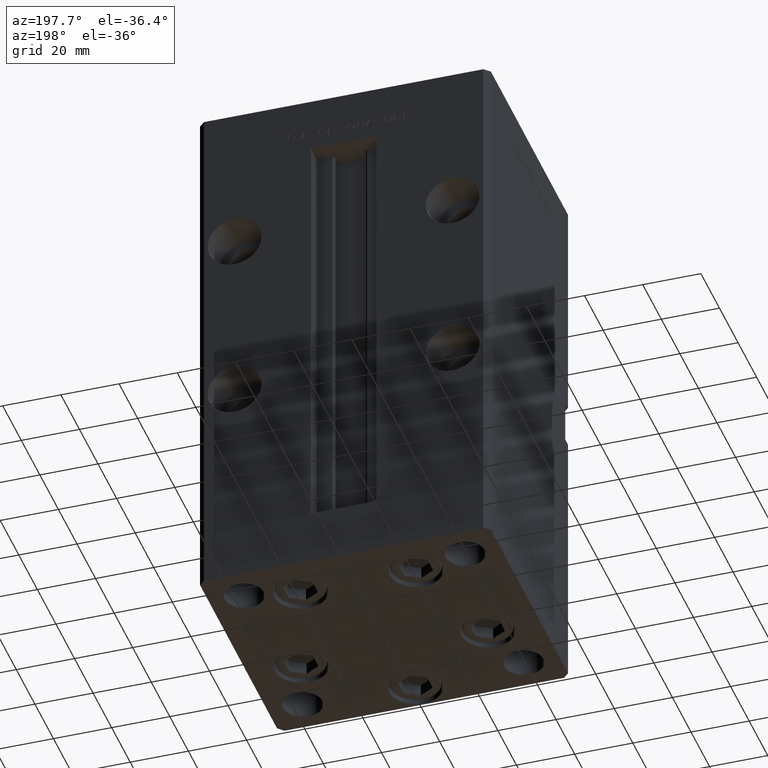
[diagram: clean part render]
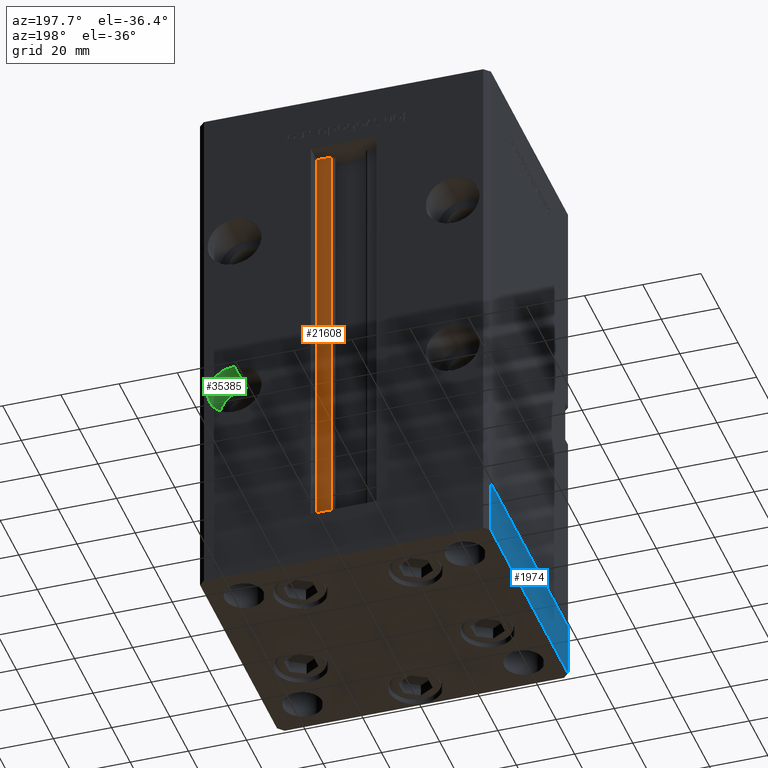
[diagram: same view with three faces highlighted in distinct colors, each labeled with its STEP entity id]
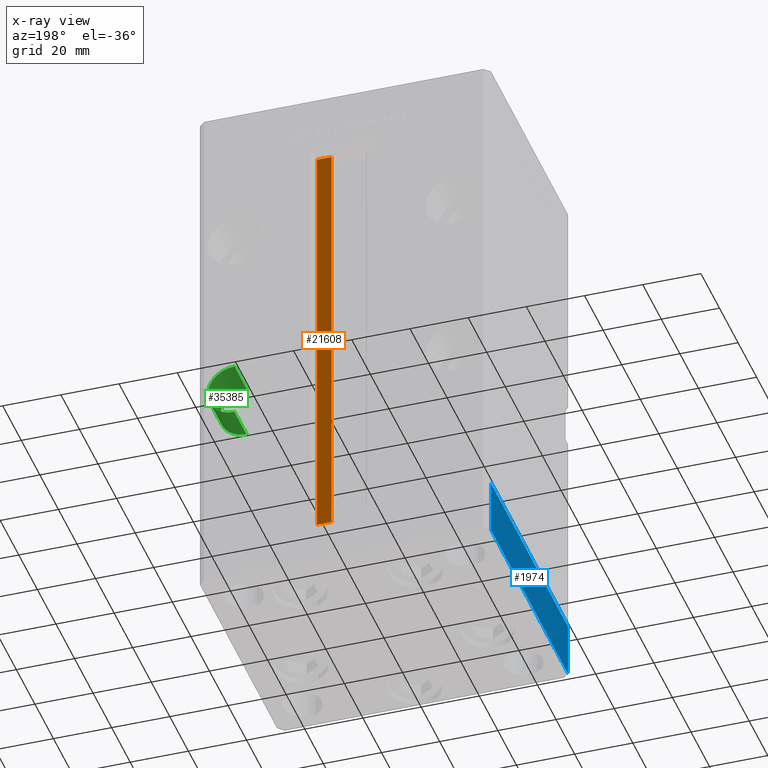
[diagram: x-ray of the same camera — body ghosted, the three highlighted faces saturated]
A machine part, auxiliary view with three faces highlighted in distinct colors.
The next image is the same camera in x-ray (body ghosted, the three faces saturated) — at least one of them is partly hidden behind the body in this view.
Their STEP definitions:

[orange] entity #21608 — the highlighted planar face has unit normal (0, -1, 0).
#208 = LINE ( 'NONE', #12600, #51812 ) ;
#2516 = CARTESIAN_POINT ( 'NONE',  ( 6.183333333333996151, 37.00000000000000000, 0.000000000000000000 ) ) ;
#2570 = VECTOR ( 'NONE', #28501, 1000.000000000000000 ) ;
#2812 = LINE ( 'NONE', #6057, #51817 ) ;
#4078 = CARTESIAN_POINT ( 'NONE',  ( 6.183333333333996151, 37.00000000000000000, 0.000000000000000000 ) ) ;
#4444 = EDGE_CURVE ( 'NONE', #33442, #8702, #2812, .T. ) ;
#5317 = LINE ( 'NONE', #37888, #38148 ) ;
#5677 = EDGE_CURVE ( 'NONE', #25075, #33442, #5317, .T. ) ;
#6057 = CARTESIAN_POINT ( 'NONE',  ( 0.000000000000000000, 37.00000000000000000, 148.5000000000000000 ) ) ;
#8702 = VERTEX_POINT ( 'NONE', #21554 ) ;
#10256 = ORIENTED_EDGE ( 'NONE', *, *, #5677, .F. ) ;
#11403 = EDGE_LOOP ( 'NONE', ( #10256, #14405, #30258, #48169 ) ) ;
#12600 = CARTESIAN_POINT ( 'NONE',  ( 6.183333333333996151, 37.00000000000000000, 0.000000000000000000 ) ) ;
#14086 = CARTESIAN_POINT ( 'NONE',  ( 11.24999999999999645, 37.00000000000000000, 0.000000000000000000 ) ) ;
#14405 = ORIENTED_EDGE ( 'NONE', *, *, #39581, .F. ) ;
#14662 = DIRECTION ( 'NONE',  ( -1.000000000000000000, 0.000000000000000000, 0.000000000000000000 ) ) ;
#15180 = FACE_OUTER_BOUND ( 'NONE', #11403, .T. ) ;
#16762 = CARTESIAN_POINT ( 'NONE',  ( 11.24999999999999645, 37.00000000000000000, 148.5000000000000000 ) ) ;
#21554 = CARTESIAN_POINT ( 'NONE',  ( 6.183333333333996151, 37.00000000000000000, 148.5000000000000000 ) ) ;
#21608 = ADVANCED_FACE ( 'NONE', ( #15180 ), #47454, .F. ) ;
#23096 = AXIS2_PLACEMENT_3D ( 'NONE', #2516, #35884, #47728 ) ;
#25075 = VERTEX_POINT ( 'NONE', #14086 ) ;
#25235 = VERTEX_POINT ( 'NONE', #4078 ) ;
#28243 = LINE ( 'NONE', #52992, #2570 ) ;
#28501 = DIRECTION ( 'NONE',  ( -0.000000000000000000, -0.000000000000000000, 1.000000000000000000 ) ) ;
#29657 = EDGE_CURVE ( 'NONE', #25235, #8702, #28243, .T. ) ;
#30258 = ORIENTED_EDGE ( 'NONE', *, *, #29657, .T. ) ;
#33442 = VERTEX_POINT ( 'NONE', #16762 ) ;
#35884 = DIRECTION ( 'NONE',  ( 0.000000000000000000, -1.000000000000000000, 0.000000000000000000 ) ) ;
#37616 = DIRECTION ( 'NONE',  ( 1.000000000000000000, 0.000000000000000000, 0.000000000000000000 ) ) ;
#37888 = CARTESIAN_POINT ( 'NONE',  ( 11.24999999999999645, 37.00000000000000000, 0.000000000000000000 ) ) ;
#38148 = VECTOR ( 'NONE', #50264, 1000.000000000000000 ) ;
#39581 = EDGE_CURVE ( 'NONE', #25235, #25075, #208, .T. ) ;
#47454 = PLANE ( 'NONE',  #23096 ) ;
#47728 = DIRECTION ( 'NONE',  ( 0.000000000000000000, -0.000000000000000000, -1.000000000000000000 ) ) ;
#48169 = ORIENTED_EDGE ( 'NONE', *, *, #4444, .F. ) ;
#50264 = DIRECTION ( 'NONE',  ( -0.000000000000000000, -0.000000000000000000, 1.000000000000000000 ) ) ;
#51812 = VECTOR ( 'NONE', #37616, 1000.000000000000000 ) ;
#51817 = VECTOR ( 'NONE', #14662, 1000.000000000000000 ) ;
#52992 = CARTESIAN_POINT ( 'NONE',  ( 6.183333333333996151, 37.00000000000000000, 0.000000000000000000 ) ) ;

[blue] entity #1974 — the highlighted planar face has unit normal (-1, -0, 0).
#1974 = ADVANCED_FACE ( 'NONE', ( #6965 ), #47333, .T. ) ;
#4029 = CARTESIAN_POINT ( 'NONE',  ( 50.00000000000000000, -41.49999999999999289, 0.000000000000000000 ) ) ;
#4064 = ORIENTED_EDGE ( 'NONE', *, *, #27914, .F. ) ;
#5063 = VECTOR ( 'NONE', #50564, 1000.000000000000000 ) ;
#5946 = CARTESIAN_POINT ( 'NONE',  ( 50.00000000000000000, -41.49999999999999289, 0.000000000000000000 ) ) ;
#6766 = CARTESIAN_POINT ( 'NONE',  ( 50.00000000000000000, -41.49999999999999289, -19.00000000000000000 ) ) ;
#6965 = FACE_OUTER_BOUND ( 'NONE', #42235, .T. ) ;
#8729 = DIRECTION ( 'NONE',  ( 0.000000000000000000, 0.000000000000000000, 1.000000000000000000 ) ) ;
#11274 = EDGE_CURVE ( 'NONE', #22695, #44687, #30876, .T. ) ;
#13842 = VERTEX_POINT ( 'NONE', #44129 ) ;
#14583 = VERTEX_POINT ( 'NONE', #5946 ) ;
#15320 = DIRECTION ( 'NONE',  ( -1.003213576468515193E-15, 1.000000000000000000, 0.000000000000000000 ) ) ;
#17081 = CARTESIAN_POINT ( 'NONE',  ( 50.00000000000000000, -41.49999999999999289, -19.00000000000000000 ) ) ;
#19219 = CARTESIAN_POINT ( 'NONE',  ( 49.99999999999992184, 41.49999999999998579, -19.00000000000000000 ) ) ;
#20273 = ORIENTED_EDGE ( 'NONE', *, *, #45109, .T. ) ;
#22695 = VERTEX_POINT ( 'NONE', #6766 ) ;
#23089 = CARTESIAN_POINT ( 'NONE',  ( 50.00000000000000000, -41.49999999999999289, -19.00000000000000000 ) ) ;
#23468 = VECTOR ( 'NONE', #42625, 1000.000000000000000 ) ;
#25958 = AXIS2_PLACEMENT_3D ( 'NONE', #43836, #35767, #15320 ) ;
#26728 = CARTESIAN_POINT ( 'NONE',  ( 49.99999999999992184, 41.49999999999998579, -19.00000000000000000 ) ) ;
#27914 = EDGE_CURVE ( 'NONE', #14583, #13842, #40906, .T. ) ;
#29433 = LINE ( 'NONE', #17081, #39598 ) ;
#30876 = LINE ( 'NONE', #23089, #32241 ) ;
#30945 = ORIENTED_EDGE ( 'NONE', *, *, #11274, .T. ) ;
#31474 = ORIENTED_EDGE ( 'NONE', *, *, #32407, .F. ) ;
#32241 = VECTOR ( 'NONE', #47040, 1000.000000000000000 ) ;
#32407 = EDGE_CURVE ( 'NONE', #22695, #14583, #29433, .T. ) ;
#35767 = DIRECTION ( 'NONE',  ( 1.000000000000000000, 1.003213576468515193E-15, -0.000000000000000000 ) ) ;
#39598 = VECTOR ( 'NONE', #8729, 1000.000000000000000 ) ;
#40906 = LINE ( 'NONE', #4029, #5063 ) ;
#42235 = EDGE_LOOP ( 'NONE', ( #4064, #31474, #30945, #20273 ) ) ;
#42625 = DIRECTION ( 'NONE',  ( 0.000000000000000000, 0.000000000000000000, 1.000000000000000000 ) ) ;
#43836 = CARTESIAN_POINT ( 'NONE',  ( 50.00000000000000000, -41.49999999999999289, -19.00000000000000000 ) ) ;
#44129 = CARTESIAN_POINT ( 'NONE',  ( 49.99999999999992184, 41.49999999999998579, 0.000000000000000000 ) ) ;
#44687 = VERTEX_POINT ( 'NONE', #19219 ) ;
#45109 = EDGE_CURVE ( 'NONE', #44687, #13842, #50964, .T. ) ;
#47040 = DIRECTION ( 'NONE',  ( -1.003213576468515193E-15, 1.000000000000000000, 0.000000000000000000 ) ) ;
#47333 = PLANE ( 'NONE',  #25958 ) ;
#50564 = DIRECTION ( 'NONE',  ( -1.003213576468515193E-15, 1.000000000000000000, 0.000000000000000000 ) ) ;
#50964 = LINE ( 'NONE', #26728, #23468 ) ;

[green] entity #35385 — the highlighted cylindrical surface (edge-blend (fillet) strip) has radius 9.25 mm, axis along (0, 1, 0).
#72 = DIRECTION ( 'NONE',  ( 0.000000000000000000, 1.000000000000000000, -0.000000000000000000 ) ) ;
#484 = VERTEX_POINT ( 'NONE', #19785 ) ;
#5331 = CIRCLE ( 'NONE', #10478, 9.250000000000001776 ) ;
#5893 = DIRECTION ( 'NONE',  ( -0.000000000000000000, 1.000000000000000000, -0.000000000000000000 ) ) ;
#7016 = AXIS2_PLACEMENT_3D ( 'NONE', #30967, #38278, #34222 ) ;
#9040 = VERTEX_POINT ( 'NONE', #41540 ) ;
#9664 = LINE ( 'NONE', #14238, #44745 ) ;
#10478 = AXIS2_PLACEMENT_3D ( 'NONE', #32788, #49199, #42207 ) ;
#14238 = CARTESIAN_POINT ( 'NONE',  ( 37.50000000000000000, 30.50000000000000000, 65.74999999999998579 ) ) ;
#16682 = CIRCLE ( 'NONE', #20113, 9.250000000000001776 ) ;
#18985 = ORIENTED_EDGE ( 'NONE', *, *, #50011, .F. ) ;
#19754 = DIRECTION ( 'NONE',  ( 0.000000000000000000, 0.000000000000000000, -1.000000000000000000 ) ) ;
#19785 = CARTESIAN_POINT ( 'NONE',  ( 37.50000000000000000, 30.50000000000000000, 47.24999999999998579 ) ) ;
#20113 = AXIS2_PLACEMENT_3D ( 'NONE', #20546, #72, #19754 ) ;
#20546 = CARTESIAN_POINT ( 'NONE',  ( 37.50000000000000000, 43.50000000000000000, 56.49999999999998579 ) ) ;
#21046 = CARTESIAN_POINT ( 'NONE',  ( 37.50000000000000000, 30.50000000000000000, 47.24999999999998579 ) ) ;
#26126 = DIRECTION ( 'NONE',  ( -0.000000000000000000, 1.000000000000000000, -0.000000000000000000 ) ) ;
#28046 = ORIENTED_EDGE ( 'NONE', *, *, #36676, .F. ) ;
#29087 = LINE ( 'NONE', #21046, #37178 ) ;
#30706 = CYLINDRICAL_SURFACE ( 'NONE', #7016, 9.250000000000001776 ) ;
#30967 = CARTESIAN_POINT ( 'NONE',  ( 37.50000000000000000, 30.50000000000000000, 56.49999999999998579 ) ) ;
#32788 = CARTESIAN_POINT ( 'NONE',  ( 37.50000000000000000, 30.50000000000000000, 56.49999999999998579 ) ) ;
#33013 = EDGE_CURVE ( 'NONE', #9040, #36673, #9664, .T. ) ;
#34222 = DIRECTION ( 'NONE',  ( 0.000000000000000000, 0.000000000000000000, 1.000000000000000000 ) ) ;
#35385 = ADVANCED_FACE ( 'NONE', ( #42574 ), #30706, .F. ) ;
#36347 = EDGE_LOOP ( 'NONE', ( #18985, #28046, #51254, #44036 ) ) ;
#36673 = VERTEX_POINT ( 'NONE', #53239 ) ;
#36676 = EDGE_CURVE ( 'NONE', #9040, #484, #5331, .T. ) ;
#37178 = VECTOR ( 'NONE', #26126, 1000.000000000000000 ) ;
#38278 = DIRECTION ( 'NONE',  ( -0.000000000000000000, 1.000000000000000000, -0.000000000000000000 ) ) ;
#38981 = VERTEX_POINT ( 'NONE', #48579 ) ;
#41540 = CARTESIAN_POINT ( 'NONE',  ( 37.50000000000000000, 30.50000000000000000, 65.74999999999998579 ) ) ;
#42207 = DIRECTION ( 'NONE',  ( 0.000000000000000000, 0.000000000000000000, -1.000000000000000000 ) ) ;
#42574 = FACE_OUTER_BOUND ( 'NONE', #36347, .T. ) ;
#44036 = ORIENTED_EDGE ( 'NONE', *, *, #47297, .T. ) ;
#44745 = VECTOR ( 'NONE', #5893, 1000.000000000000000 ) ;
#47297 = EDGE_CURVE ( 'NONE', #36673, #38981, #16682, .T. ) ;
#48579 = CARTESIAN_POINT ( 'NONE',  ( 37.50000000000000000, 43.50000000000000000, 47.24999999999998579 ) ) ;
#49199 = DIRECTION ( 'NONE',  ( 0.000000000000000000, 1.000000000000000000, -0.000000000000000000 ) ) ;
#50011 = EDGE_CURVE ( 'NONE', #484, #38981, #29087, .T. ) ;
#51254 = ORIENTED_EDGE ( 'NONE', *, *, #33013, .T. ) ;
#53239 = CARTESIAN_POINT ( 'NONE',  ( 37.50000000000000000, 43.50000000000000000, 65.74999999999998579 ) ) ;